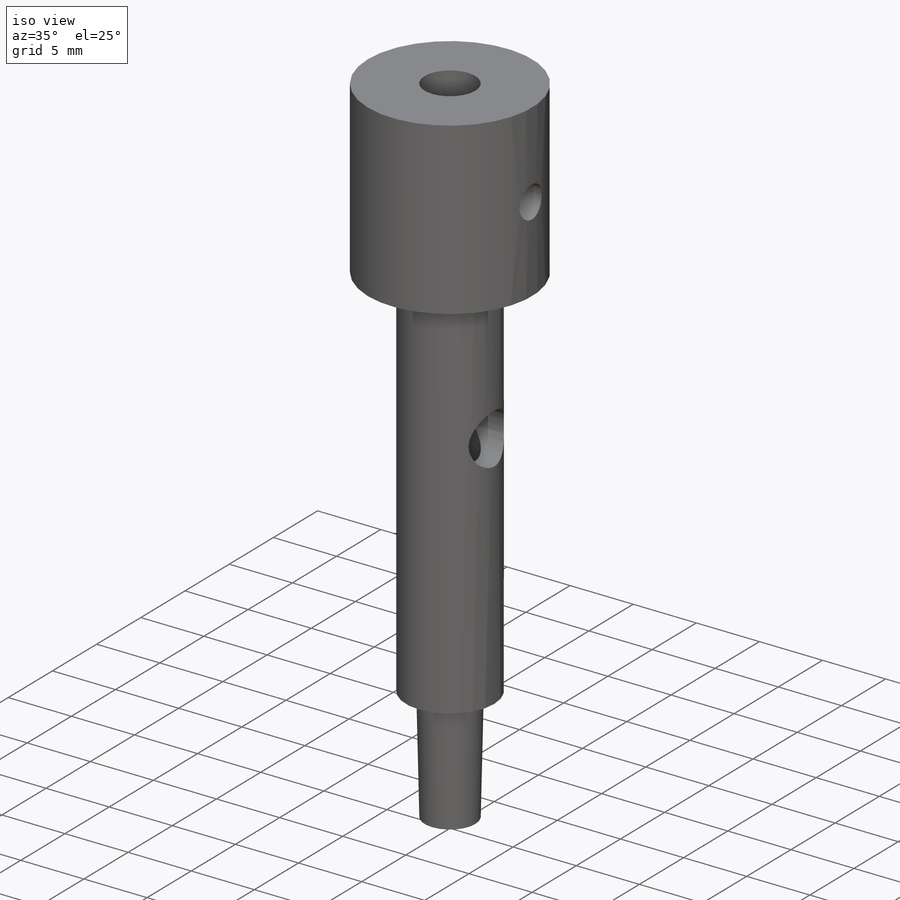
[diagram: iso view]
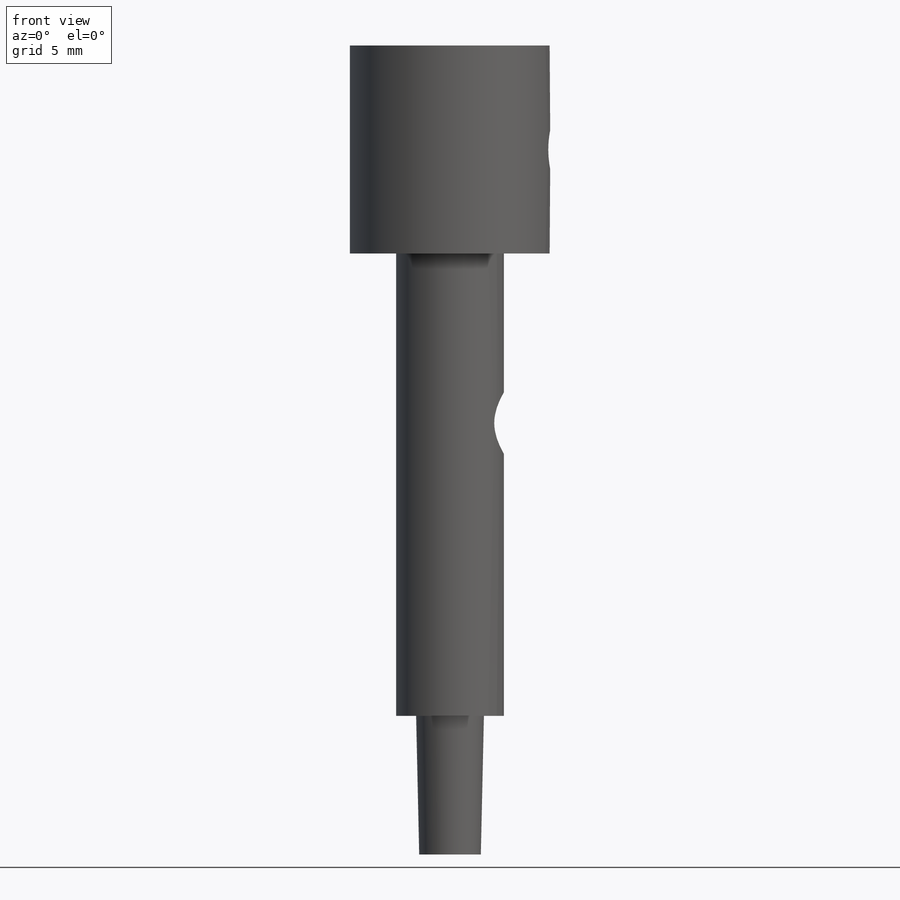
[diagram: front view]
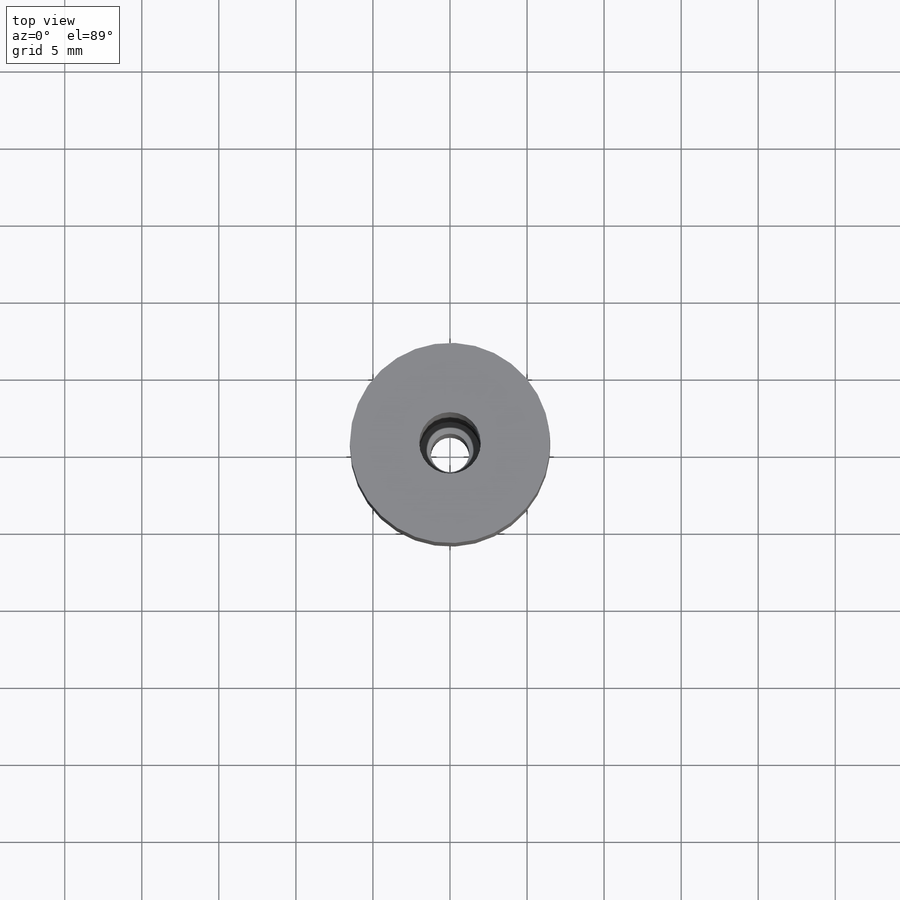
[diagram: top view]
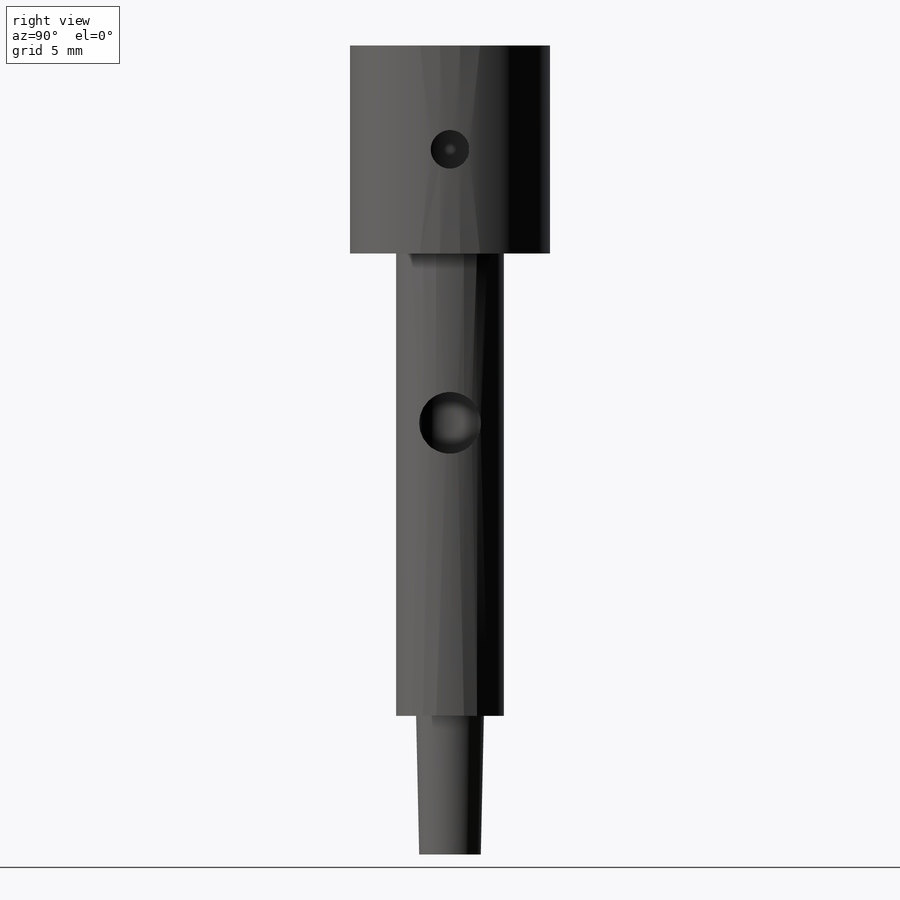
[diagram: right view]
SOLIDWORKS PART (.sldprt)
format: sldprt  version: not decoded by parser v0  size: 208,896 bytes
history: native  units: mm
features: plane x5, sketch x5, material x1, revolve x1, cut_extrude x1, hole x1, thread x1 (+10 scaffold rows collapsed)
feature tree (25):
  scaffold x10  (default folders/planes/origin — collapsed)
  material  "Латунь"
  plane  "Спереди"
  plane  "Сверху"
  plane  "Справа"
  sketch  "Эскиз1"  dims[c1.D1=2.2mm c1.D2=2.0mm c1.D3=3.5mm c1.D4=2.5mm c1.D5=2.0mm c1.D6=~1.264393mm c2.D6=90.0deg c3.D6=6.5mm c3.D7=13.5mm c3.D8=9.0mm c3.D9=5.0mm c3.D10=~17.719183mm c3.D11=14.0mm c3.D12=1.25mm c4.D12=~57.994617deg c5.D12=~1.47406mm c6.D12=118.0deg c6.D11=7.0mm]
  revolve  "Повернуть1"  Angle=360deg
  plane  "Плоскость1"
  sketch  "Эскиз2"  dims[D1=4.0mm D2=14.0mm]
  cut_extrude  "Вырез-Вытянуть1"  Depth=3.5mm
  plane  "Плоскость2"
  sketch  "Эскиз3"
  hole  "Отверстие обработанное метчиком M31"  [1 undecoded]
  sketch  "Эскиз5"
  sketch  "Эскиз4"  dims[hole-wizard template sketch: 47 standard entries collapsed; hole parameters kept: c15.Глубина сверла=6.0mm c15.D3=~14.816244mm c15.Угол заточки сверла=118.0deg]
  thread  "Отверстие резьбы1"  Diameter=4.938751mm  [1 undecoded]
decode coverage: 6 of 9 modeling features carry decoded parameters
note: ~ marks probable driven/reference dimensions
note: 2 parameter values undecoded
note: suppression state not decoded; provenance and decode notes live in map.json
